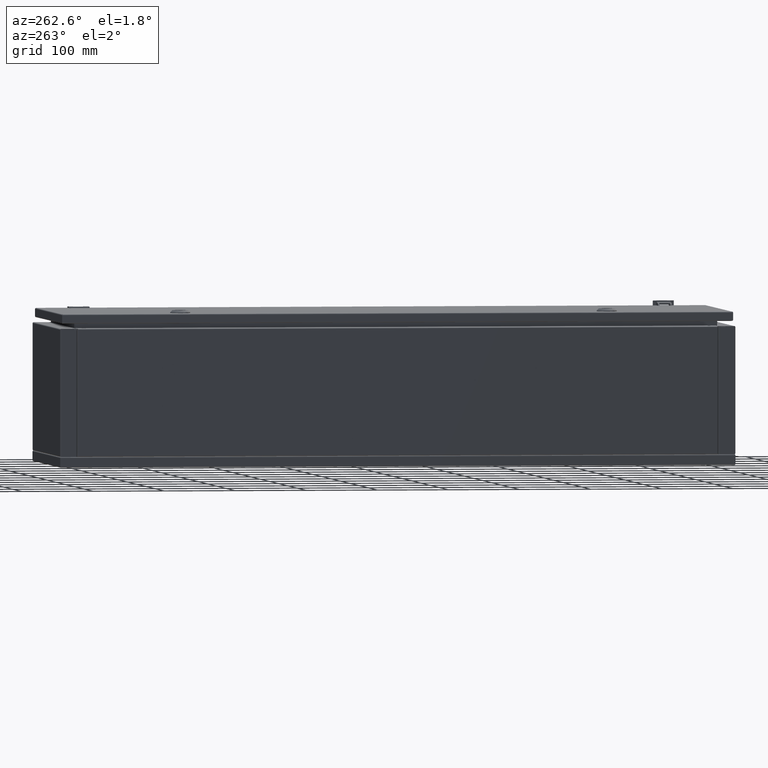
[diagram: clean part render]
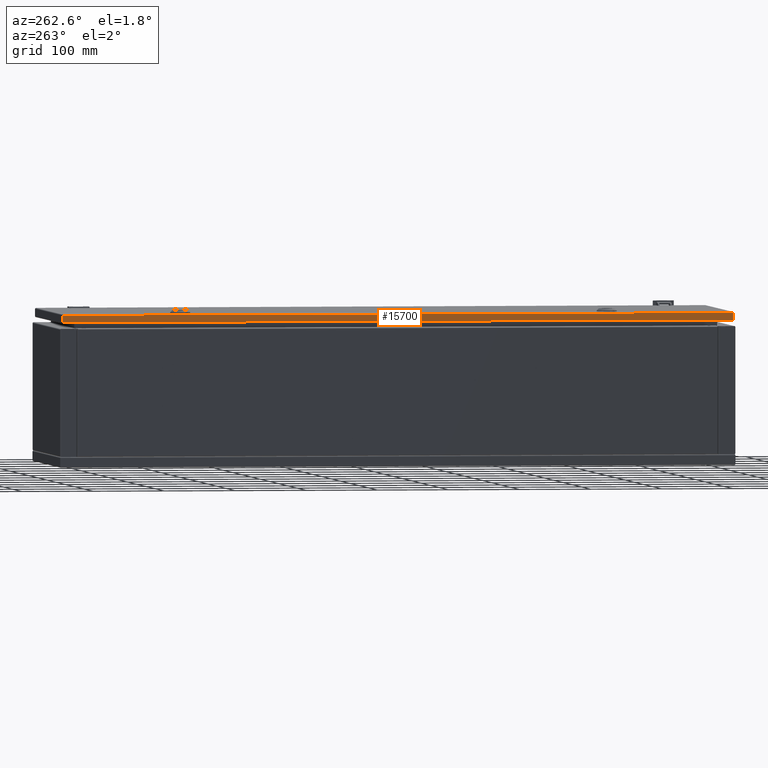
[diagram: same view with one face highlighted and labeled with its STEP entity id]
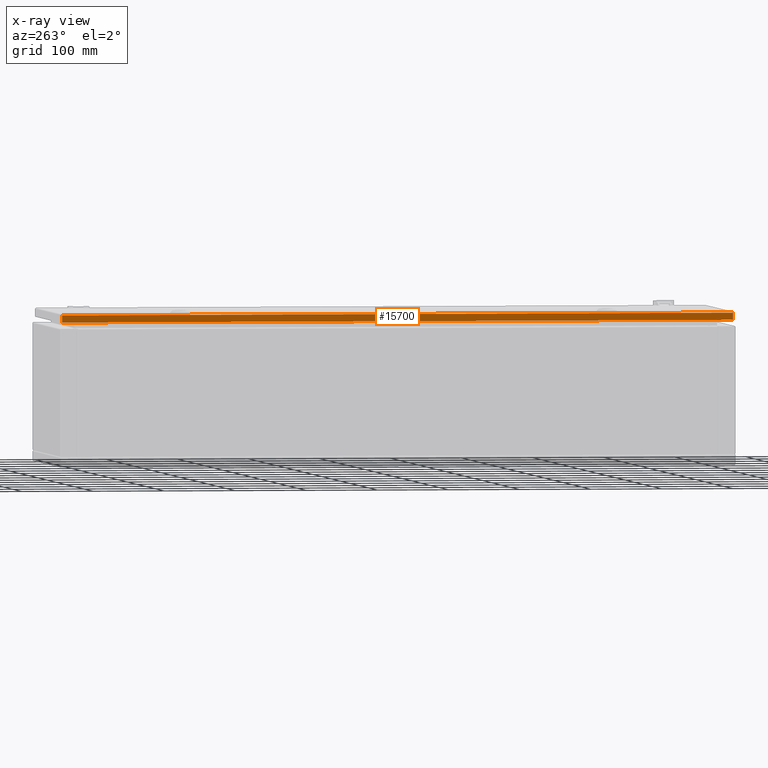
[diagram: x-ray of the same camera — body ghosted, the highlighted face saturated]
A machine part, auxiliary view. The second image highlights one B-rep face of the part: STEP entity #15700.
The next image is the same camera in x-ray: the body ghosted, the highlighted face saturated — about 0% of this face is hidden behind the body in this view.
In plain terms, the highlighted planar face has unit normal (1, -0, -0).
Its self-contained STEP definition (entity closure, byte-faithful):
#2626 = LINE ( 'NONE', #87181, #56905 ) ;
#7484 = VECTOR ( 'NONE', #86197, 1000.000000000000000 ) ;
#8159 = CARTESIAN_POINT ( 'NONE',  ( -147.0000000000877900, 471.8999999999910000, 201.6000000000065000 ) ) ;
#10664 = LINE ( 'NONE', #41436, #85062 ) ;
#10994 = EDGE_CURVE ( 'NONE', #66876, #73060, #39100, .T. ) ;
#15700 = ADVANCED_FACE ( 'NONE', ( #52139 ), #79780, .F. ) ;
#17751 = ORIENTED_EDGE ( 'NONE', *, *, #75868, .F. ) ;
#18034 = ORIENTED_EDGE ( 'NONE', *, *, #79126, .T. ) ;
#18559 = CARTESIAN_POINT ( 'NONE',  ( -147.0000000000949900, -472.1000000000100300, 211.6000000000025000 ) ) ;
#20059 = DIRECTION ( 'NONE',  ( -1.770111834886725100E-014, 3.648940030274940600E-015, -1.000000000000000000 ) ) ;
#22212 = CARTESIAN_POINT ( 'NONE',  ( -147.0000000000876000, 471.8999999999899700, 211.6000000000059900 ) ) ;
#26844 = DIRECTION ( 'NONE',  ( -7.617910074183431100E-015, -1.000000000000000000, -3.648940030274805700E-015 ) ) ;
#30442 = CARTESIAN_POINT ( 'NONE',  ( -147.0000000000949900, -472.1000000000100300, 201.6000000000025000 ) ) ;
#30753 = CARTESIAN_POINT ( 'NONE',  ( -147.0000000000876000, 471.8999999999899700, 211.6000000000059900 ) ) ;
#34581 = CARTESIAN_POINT ( 'NONE',  ( -147.0000000000912100, -0.1000000000096210000, 212.1000000000050000 ) ) ;
#36054 = EDGE_LOOP ( 'NONE', ( #18034, #17751, #37227, #86166 ) ) ;
#37227 = ORIENTED_EDGE ( 'NONE', *, *, #71978, .F. ) ;
#39100 = LINE ( 'NONE', #22212, #60458 ) ;
#41436 = CARTESIAN_POINT ( 'NONE',  ( -147.0000000000877900, 470.5464466093969800, 201.6000000000059900 ) ) ;
#43732 = AXIS2_PLACEMENT_3D ( 'NONE', #34581, #68472, #46239 ) ;
#46239 = DIRECTION ( 'NONE',  ( -1.677593249501300000E-014, 3.648940030274935900E-015, -1.000000000000000000 ) ) ;
#52139 = FACE_OUTER_BOUND ( 'NONE', #36054, .T. ) ;
#56905 = VECTOR ( 'NONE', #20059, 1000.000000000000000 ) ;
#60458 = VECTOR ( 'NONE', #84305, 1000.000000000000000 ) ;
#63168 = VERTEX_POINT ( 'NONE', #18559 ) ;
#66876 = VERTEX_POINT ( 'NONE', #30753 ) ;
#68132 = LINE ( 'NONE', #68148, #7484 ) ;
#68148 = CARTESIAN_POINT ( 'NONE',  ( -147.0000000000949900, -472.1000000000100300, 211.6000000000025000 ) ) ;
#68472 = DIRECTION ( 'NONE',  ( 1.000000000000000000, -7.617910074183371100E-015, -1.677593249501302900E-014 ) ) ;
#71978 = EDGE_CURVE ( 'NONE', #66876, #63168, #68132, .T. ) ;
#73060 = VERTEX_POINT ( 'NONE', #8159 ) ;
#75868 = EDGE_CURVE ( 'NONE', #63168, #80383, #2626, .T. ) ;
#79126 = EDGE_CURVE ( 'NONE', #73060, #80383, #10664, .T. ) ;
#79780 = PLANE ( 'NONE',  #43732 ) ;
#80383 = VERTEX_POINT ( 'NONE', #30442 ) ;
#84305 = DIRECTION ( 'NONE',  ( -2.047667591043015200E-014, 9.200055153400750100E-015, -1.000000000000000000 ) ) ;
#85062 = VECTOR ( 'NONE', #26844, 1000.000000000000000 ) ;
#86166 = ORIENTED_EDGE ( 'NONE', *, *, #10994, .T. ) ;
#86197 = DIRECTION ( 'NONE',  ( -7.617910074183431100E-015, -1.000000000000000000, -3.619537937461639700E-015 ) ) ;
#87181 = CARTESIAN_POINT ( 'NONE',  ( -147.0000000000949900, -472.1000000000100300, 211.6000000000025000 ) ) ;